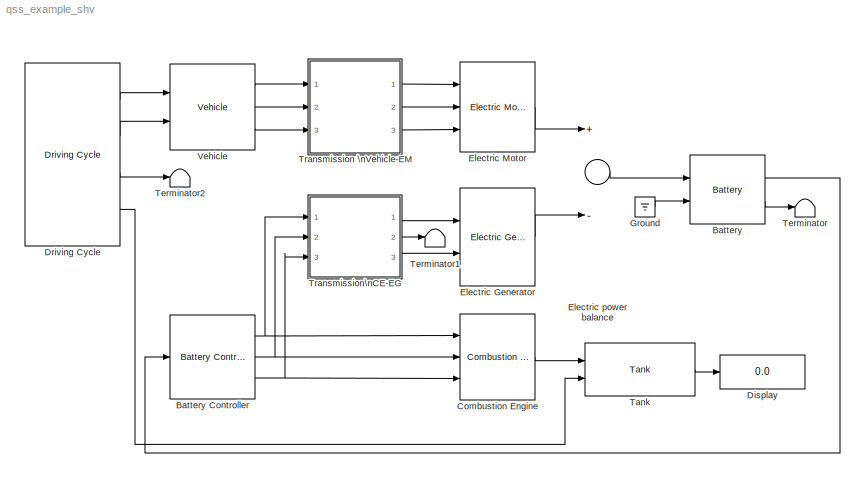
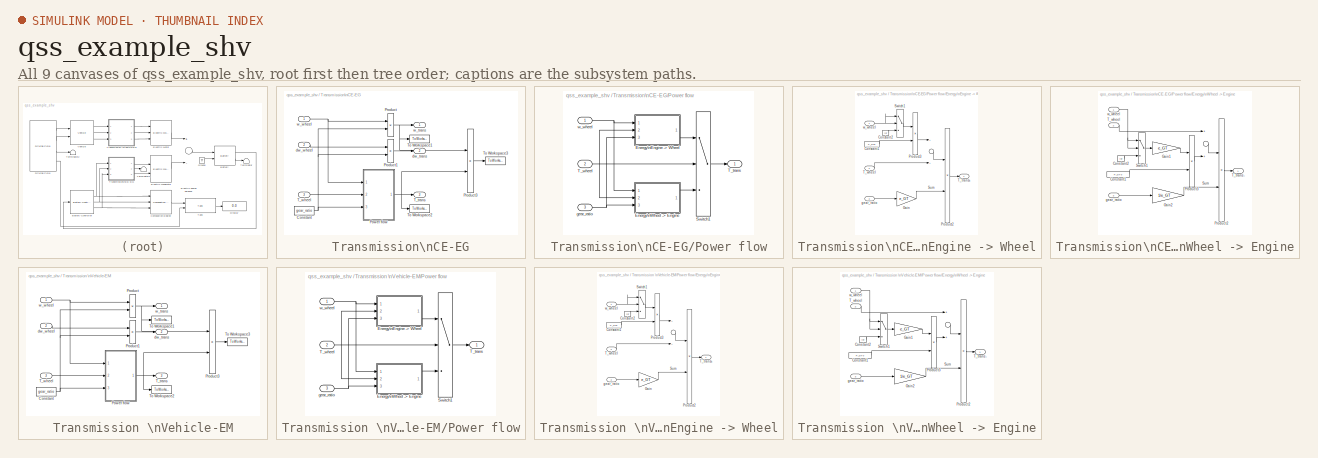
[diagram: thumbnail index - all 9 canvases of the model, root first then tree order]
MODEL qss_example_shv
KIND model
BLOCK [Reference] Battery  REF=qss_tb_library/Energy Buffer/Battery  (lib defined in mdl_a75e96b0ff2a, mdl_aad2a3137e65)
  I_0 = 100
  Ports = [2, 2]
  Q_BT_IC_rel = 27.78
  ShowPortLabels = on
  SourceBlock = qss_tb_library/Energy Buffer/Battery
  SourceType = Battery
  Tag = battery
  t_ch = 20
BLOCK [Reference] Battery Controller  REF=qss_tb_library/Controller/Battery Controller  (lib defined in mdl_a75e96b0ff2a, mdl_aad2a3137e65)
  Ports = [1, 3]
  ShowPortLabels = on
  SourceBlock = qss_tb_library/Controller/Battery Controller
  SourceType = Battery Controller
BLOCK [Reference] Combustion Engine  REF=qss_tb_library/Energy Converter/Combustion Engine\n(consumption map)  (lib defined in mdl_a75e96b0ff2a, mdl_aad2a3137e65)
  ENABLE_FUEL_CUTOFF = off
  P_CE_cutoff = 0
  P_CE_idle = 0
  P_aux = 0
  Ports = [3, 1]
  ShowPortLabels = on
  SourceBlock = qss_tb_library/Energy Converter/Combustion Engine\n(consumption map)
  SourceType = Combustion Engine (based on consumption map)
  T_CE_cutoff = 0
  Tag = combustion engine
  V_d = 0.708
  engine_type = Otto
  scale_CE = 0.5
  theta_CE = 0.05
  w_CE_idle = 105
BLOCK [Display] Display
  Decimation = 1
  Lockdown = off
  Ports = [1]
BLOCK [Reference] Driving Cycle  REF=qss_tb_library/Driving Cycle/Driving Cycle  (lib defined in mdl_a75e96b0ff2a, mdl_aad2a3137e65)
  Ports = [0, 4]
  ShowPortLabels = on
  SourceBlock = qss_tb_library/Driving Cycle/Driving Cycle
  SourceType = Driving Cycle
  Tag = cycle
  autostop = on
  cyclenr = Europe: NEDC
  stepsize = 1
BLOCK [Reference] Electric Generator  REF=qss_tb_library/Energy Converter/Electric Generator  (lib defined in mdl_a75e96b0ff2a, mdl_aad2a3137e65)
  Ports = [2, 1]
  ShowPortLabels = on
  SourceBlock = qss_tb_library/Energy Converter/Electric Generator
  SourceType = Electric Generator
  scale_EG = 2
BLOCK [Reference] Electric Motor  REF=qss_tb_library/Energy Converter/Electric Motor  (lib defined in mdl_a75e96b0ff2a, mdl_aad2a3137e65)
  P_aux = 0
  Ports = [3, 1]
  ShowPortLabels = on
  SourceBlock = qss_tb_library/Energy Converter/Electric Motor
  SourceType = Electric Motor
  scale_EM = 3.5
  theta_EM = 0.1
BLOCK [Sum] Electric power balance
  InputSameDT = off
  Inputs = +-
  OutDataTypeMode = Inherit via internal rule
  OutScaling = 2^-10
  Ports = [2, 1]
  SaturateOnIntegerOverflow = off
BLOCK [Ground] Ground
BLOCK [Reference] Tank  REF=qss_tb_library/Energy Source/Tank  (lib defined in mdl_a75e96b0ff2a, mdl_aad2a3137e65)
  Ports = [2, 1]
  ShowPortLabels = on
  SourceBlock = qss_tb_library/Energy Source/Tank
  SourceType = Tank
  Tag = tank
  flag_cold_start = off
  fuel = Gasoline
BLOCK [Terminator] Terminator
BLOCK [Terminator] Terminator1
BLOCK [Terminator] Terminator2
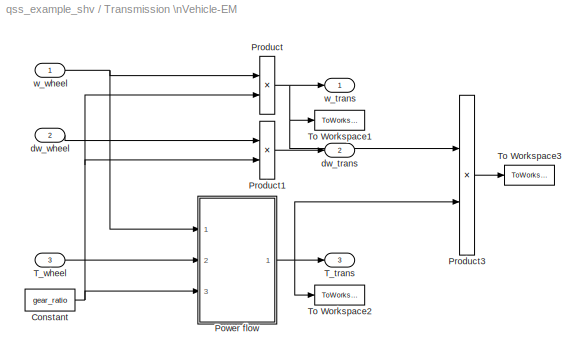
BLOCK [SubSystem] Transmission \nVehicle-EM
  AncestorBlock = qss_tb_library/Gear System/Transmission
  MaskCallbackString = |||
  MaskDescription = This block simulates a transmission with a fixed gear ratio. \n\nInput:\n=====\n	w_wheel	Speed of the wheel [rad/s]\n	dw_wheel	Acceleration of the wheel [rad/s^2]\n	T_wheel	Torque on the wheel [Nm]\n\nOutput:\n======\n	w_trans		Speed of the fly wheel [rad/s]\n	dw_trans	Acceleration of the fly wheel [rad/s^2]\n	T_trans		Torque on the fly wheel [Nm]
  MaskEnableString = on,on,on,on
  MaskHideContents = off
  MaskIconFrame = on
  MaskIconOpaque = on
  MaskIconRotate = none
  MaskIconUnits = autoscale
  MaskInitialization = init_transmission;
  MaskPromptString = Gear ratio [-]|Efficiency [-]|Idling losses (friction) [W]|Minimum wheel speed beyond which losses are generated [rad/s]
  MaskStyleString = edit,edit,edit,edit
  MaskTabNameString = ,,,
  MaskToolTipString = on,on,on,on
  MaskTunableValueString = on,on,on,on
  MaskType = Transmission
  MaskValueString = 3.5|0.98|300|1
  MaskVarAliasString = ,,,
  MaskVariables = gear_ratio=@1;e_GT=@2;P_GT0=@3;w_wheel_min=@4;
  MaskVisibilityString = on,on,on,on
  MinAlgLoopOccurrences = off
  Ports = [3, 3]
  RTWSystemCode = Auto
  Tag = simple transmission
  TreatAsAtomicUnit = off
BLOCK [Constant] Transmission \nVehicle-EM/Constant
  Value = gear_ratio
BLOCK [SubSystem] Transmission \nVehicle-EM/Power flow
  MaskHideContents = off
  MinAlgLoopOccurrences = off
  Ports = [3, 1]
  RTWSystemCode = Auto
  TreatAsAtomicUnit = off
BLOCK [SubSystem] Transmission \nVehicle-EM/Power flow/Energy\nEngine -> Wheel
  MaskHideContents = off
  MinAlgLoopOccurrences = off
  Ports = [3, 1]
  RTWSystemCode = Auto
  TreatAsAtomicUnit = off
BLOCK [Constant] Transmission \nVehicle-EM/Power flow/Energy\nEngine -> Wheel/Constant1
  Value = P_GT0
BLOCK [Constant] Transmission \nVehicle-EM/Power flow/Energy\nEngine -> Wheel/Constant2
  Value = inf
BLOCK [Gain] Transmission \nVehicle-EM/Power flow/Energy\nEngine -> Wheel/Gain
  Gain = e_GT
BLOCK [Product] Transmission \nVehicle-EM/Power flow/Energy\nEngine -> Wheel/Product2
  Inputs = */
  Ports = [2, 1]
BLOCK [Product] Transmission \nVehicle-EM/Power flow/Energy\nEngine -> Wheel/Product3
  Inputs = /*
  Ports = [2, 1]
BLOCK [Sum] Transmission \nVehicle-EM/Power flow/Energy\nEngine -> Wheel/Sum
  Ports = [2, 1]
BLOCK [Switch] Transmission \nVehicle-EM/Power flow/Energy\nEngine -> Wheel/Switch1
  Threshold = w_wheel_min
BLOCK [Outport] Transmission \nVehicle-EM/Power flow/Energy\nEngine -> Wheel/T_trans+
  BusOutputAsStruct = off
  IconDisplay = Port number
  InitialOutput = 0
BLOCK [Inport] Transmission \nVehicle-EM/Power flow/Energy\nEngine -> Wheel/T_wheel
  IconDisplay = Port number
  Port = 2
BLOCK [Inport] Transmission \nVehicle-EM/Power flow/Energy\nEngine -> Wheel/gear_ratio
  IconDisplay = Port number
  Port = 3
BLOCK [Inport] Transmission \nVehicle-EM/Power flow/Energy\nEngine -> Wheel/w_wheel
  IconDisplay = Port number
BLOCK [SubSystem] Transmission \nVehicle-EM/Power flow/Energy\nWheel -> Engine
  MaskHideContents = off
  MinAlgLoopOccurrences = off
  Ports = [3, 1]
  RTWSystemCode = Auto
  TreatAsAtomicUnit = off
BLOCK [Constant] Transmission \nVehicle-EM/Power flow/Energy\nWheel -> Engine/Constant1
  Value = P_GT0
BLOCK [Constant] Transmission \nVehicle-EM/Power flow/Energy\nWheel -> Engine/Constant2
  Value = inf
BLOCK [Gain] Transmission \nVehicle-EM/Power flow/Energy\nWheel -> Engine/Gain1
  Gain = e_GT
BLOCK [Gain] Transmission \nVehicle-EM/Power flow/Energy\nWheel -> Engine/Gain2
  Gain = 1/e_GT
BLOCK [Product] Transmission \nVehicle-EM/Power flow/Energy\nWheel -> Engine/Product2
  Inputs = */
  Ports = [2, 1]
BLOCK [Product] Transmission \nVehicle-EM/Power flow/Energy\nWheel -> Engine/Product3
  Inputs = /*
  Ports = [2, 1]
BLOCK [Sum] Transmission \nVehicle-EM/Power flow/Energy\nWheel -> Engine/Sum
  Ports = [2, 1]
BLOCK [Switch] Transmission \nVehicle-EM/Power flow/Energy\nWheel -> Engine/Switch1
  Threshold = w_wheel_min
BLOCK [Outport] Transmission \nVehicle-EM/Power flow/Energy\nWheel -> Engine/T_trans-
  BusOutputAsStruct = off
  IconDisplay = Port number
  InitialOutput = 0
BLOCK [Inport] Transmission \nVehicle-EM/Power flow/Energy\nWheel -> Engine/T_wheel
  IconDisplay = Port number
  Port = 2
BLOCK [Inport] Transmission \nVehicle-EM/Power flow/Energy\nWheel -> Engine/gear_ratio
  IconDisplay = Port number
  Port = 3
BLOCK [Inport] Transmission \nVehicle-EM/Power flow/Energy\nWheel -> Engine/w_wheel
  IconDisplay = Port number
BLOCK [Switch] Transmission \nVehicle-EM/Power flow/Switch1
BLOCK [Outport] Transmission \nVehicle-EM/Power flow/T_trans
  BusOutputAsStruct = off
  IconDisplay = Port number
  InitialOutput = 0
BLOCK [Inport] Transmission \nVehicle-EM/Power flow/T_wheel
  IconDisplay = Port number
  Port = 2
BLOCK [Inport] Transmission \nVehicle-EM/Power flow/gear_ratio
  IconDisplay = Port number
  Port = 3
BLOCK [Inport] Transmission \nVehicle-EM/Power flow/w_wheel
  IconDisplay = Port number
BLOCK [Product] Transmission \nVehicle-EM/Product
  Ports = [2, 1]
BLOCK [Product] Transmission \nVehicle-EM/Product1
  Ports = [2, 1]
BLOCK [Product] Transmission \nVehicle-EM/Product3
  Ports = [2, 1]
BLOCK [Outport] Transmission \nVehicle-EM/T_trans
  BusOutputAsStruct = off
  IconDisplay = Port number
  InitialOutput = 0
  Port = 3
BLOCK [Inport] Transmission \nVehicle-EM/T_wheel
  IconDisplay = Port number
  Port = 3
BLOCK [ToWorkspace] Transmission \nVehicle-EM/To Workspace1
  MaxDataPoints = inf
  SampleTime = -1
  SaveFormat = Array
  VariableName = w_trans_1
BLOCK [ToWorkspace] Transmission \nVehicle-EM/To Workspace2
  MaxDataPoints = inf
  SampleTime = -1
  SaveFormat = Array
  VariableName = T_trans_1
BLOCK [ToWorkspace] Transmission \nVehicle-EM/To Workspace3
  MaxDataPoints = inf
  SampleTime = -1
  SaveFormat = Array
  VariableName = P_trans_1
BLOCK [Outport] Transmission \nVehicle-EM/dw_trans
  BusOutputAsStruct = off
  IconDisplay = Port number
  InitialOutput = 0
  Port = 2
BLOCK [Inport] Transmission \nVehicle-EM/dw_wheel
  IconDisplay = Port number
  Port = 2
BLOCK [Outport] Transmission \nVehicle-EM/w_trans
  BusOutputAsStruct = off
  IconDisplay = Port number
  InitialOutput = 0
BLOCK [Inport] Transmission \nVehicle-EM/w_wheel
  IconDisplay = Port number
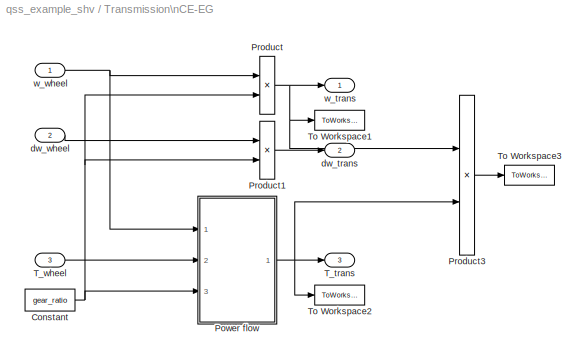
BLOCK [SubSystem] Transmission\nCE-EG
  AncestorBlock = qss_tb_library/Gear System/Transmission
  MaskCallbackString = |||
  MaskDescription = This block simulates a transmission with a fixed gear ratio. \n\nInput:\n=====\n	w_wheel	Speed of the wheel [rad/s]\n	dw_wheel	Acceleration of the wheel [rad/s^2]\n	T_wheel	Torque on the wheel [Nm]\n\nOutput:\n======\n	w_trans		Speed of the fly wheel [rad/s]\n	dw_trans	Acceleration of the fly wheel [rad/s^2]\n	T_trans		Torque on the fly wheel [Nm]
  MaskEnableString = on,on,on,on
  MaskHideContents = off
  MaskIconFrame = on
  MaskIconOpaque = on
  MaskIconRotate = none
  MaskIconUnits = autoscale
  MaskInitialization = init_transmission;
  MaskPromptString = Gear ratio [-]|Efficiency [-]|Idling losses (friction) [W]|Minimum wheel speed beyond which losses are generated [rad/s]
  MaskStyleString = edit,edit,edit,edit
  MaskTabNameString = ,,,
  MaskToolTipString = on,on,on,on
  MaskTunableValueString = on,on,on,on
  MaskType = Transmission
  MaskValueString = 0.75|0.98|200|1
  MaskVarAliasString = ,,,
  MaskVariables = gear_ratio=@1;e_GT=@2;P_GT0=@3;w_wheel_min=@4;
  MaskVisibilityString = on,on,on,on
  MinAlgLoopOccurrences = off
  Ports = [3, 3]
  RTWSystemCode = Auto
  Tag = simple transmission
  TreatAsAtomicUnit = off
BLOCK [Constant] Transmission\nCE-EG/Constant
  Value = gear_ratio
BLOCK [SubSystem] Transmission\nCE-EG/Power flow
  MaskHideContents = off
  MinAlgLoopOccurrences = off
  Ports = [3, 1]
  RTWSystemCode = Auto
  TreatAsAtomicUnit = off
BLOCK [SubSystem] Transmission\nCE-EG/Power flow/Energy\nEngine -> Wheel
  MaskHideContents = off
  MinAlgLoopOccurrences = off
  Ports = [3, 1]
  RTWSystemCode = Auto
  TreatAsAtomicUnit = off
BLOCK [Constant] Transmission\nCE-EG/Power flow/Energy\nEngine -> Wheel/Constant1
  Value = P_GT0
BLOCK [Constant] Transmission\nCE-EG/Power flow/Energy\nEngine -> Wheel/Constant2
  Value = inf
BLOCK [Gain] Transmission\nCE-EG/Power flow/Energy\nEngine -> Wheel/Gain
  Gain = e_GT
BLOCK [Product] Transmission\nCE-EG/Power flow/Energy\nEngine -> Wheel/Product2
  Inputs = */
  Ports = [2, 1]
BLOCK [Product] Transmission\nCE-EG/Power flow/Energy\nEngine -> Wheel/Product3
  Inputs = /*
  Ports = [2, 1]
BLOCK [Sum] Transmission\nCE-EG/Power flow/Energy\nEngine -> Wheel/Sum
  Ports = [2, 1]
BLOCK [Switch] Transmission\nCE-EG/Power flow/Energy\nEngine -> Wheel/Switch1
  Threshold = w_wheel_min
BLOCK [Outport] Transmission\nCE-EG/Power flow/Energy\nEngine -> Wheel/T_trans+
  BusOutputAsStruct = off
  IconDisplay = Port number
  InitialOutput = 0
BLOCK [Inport] Transmission\nCE-EG/Power flow/Energy\nEngine -> Wheel/T_wheel
  IconDisplay = Port number
  Port = 2
BLOCK [Inport] Transmission\nCE-EG/Power flow/Energy\nEngine -> Wheel/gear_ratio
  IconDisplay = Port number
  Port = 3
BLOCK [Inport] Transmission\nCE-EG/Power flow/Energy\nEngine -> Wheel/w_wheel
  IconDisplay = Port number
BLOCK [SubSystem] Transmission\nCE-EG/Power flow/Energy\nWheel -> Engine
  MaskHideContents = off
  MinAlgLoopOccurrences = off
  Ports = [3, 1]
  RTWSystemCode = Auto
  TreatAsAtomicUnit = off
BLOCK [Constant] Transmission\nCE-EG/Power flow/Energy\nWheel -> Engine/Constant1
  Value = P_GT0
BLOCK [Constant] Transmission\nCE-EG/Power flow/Energy\nWheel -> Engine/Constant2
  Value = inf
BLOCK [Gain] Transmission\nCE-EG/Power flow/Energy\nWheel -> Engine/Gain1
  Gain = e_GT
BLOCK [Gain] Transmission\nCE-EG/Power flow/Energy\nWheel -> Engine/Gain2
  Gain = 1/e_GT
BLOCK [Product] Transmission\nCE-EG/Power flow/Energy\nWheel -> Engine/Product2
  Inputs = */
  Ports = [2, 1]
BLOCK [Product] Transmission\nCE-EG/Power flow/Energy\nWheel -> Engine/Product3
  Inputs = /*
  Ports = [2, 1]
BLOCK [Sum] Transmission\nCE-EG/Power flow/Energy\nWheel -> Engine/Sum
  Ports = [2, 1]
BLOCK [Switch] Transmission\nCE-EG/Power flow/Energy\nWheel -> Engine/Switch1
  Threshold = w_wheel_min
BLOCK [Outport] Transmission\nCE-EG/Power flow/Energy\nWheel -> Engine/T_trans-
  BusOutputAsStruct = off
  IconDisplay = Port number
  InitialOutput = 0
BLOCK [Inport] Transmission\nCE-EG/Power flow/Energy\nWheel -> Engine/T_wheel
  IconDisplay = Port number
  Port = 2
BLOCK [Inport] Transmission\nCE-EG/Power flow/Energy\nWheel -> Engine/gear_ratio
  IconDisplay = Port number
  Port = 3
BLOCK [Inport] Transmission\nCE-EG/Power flow/Energy\nWheel -> Engine/w_wheel
  IconDisplay = Port number
BLOCK [Switch] Transmission\nCE-EG/Power flow/Switch1
BLOCK [Outport] Transmission\nCE-EG/Power flow/T_trans
  BusOutputAsStruct = off
  IconDisplay = Port number
  InitialOutput = 0
BLOCK [Inport] Transmission\nCE-EG/Power flow/T_wheel
  IconDisplay = Port number
  Port = 2
BLOCK [Inport] Transmission\nCE-EG/Power flow/gear_ratio
  IconDisplay = Port number
  Port = 3
BLOCK [Inport] Transmission\nCE-EG/Power flow/w_wheel
  IconDisplay = Port number
BLOCK [Product] Transmission\nCE-EG/Product
  Ports = [2, 1]
BLOCK [Product] Transmission\nCE-EG/Product1
  Ports = [2, 1]
BLOCK [Product] Transmission\nCE-EG/Product3
  Ports = [2, 1]
BLOCK [Outport] Transmission\nCE-EG/T_trans
  BusOutputAsStruct = off
  IconDisplay = Port number
  InitialOutput = 0
  Port = 3
BLOCK [Inport] Transmission\nCE-EG/T_wheel
  IconDisplay = Port number
  Port = 3
BLOCK [ToWorkspace] Transmission\nCE-EG/To Workspace1
  MaxDataPoints = inf
  SampleTime = -1
  SaveFormat = Array
  VariableName = w_trans_2
BLOCK [ToWorkspace] Transmission\nCE-EG/To Workspace2
  MaxDataPoints = inf
  SampleTime = -1
  SaveFormat = Array
  VariableName = T_trans_2
BLOCK [ToWorkspace] Transmission\nCE-EG/To Workspace3
  MaxDataPoints = inf
  SampleTime = -1
  SaveFormat = Array
  VariableName = P_trans_2
BLOCK [Outport] Transmission\nCE-EG/dw_trans
  BusOutputAsStruct = off
  IconDisplay = Port number
  InitialOutput = 0
  Port = 2
BLOCK [Inport] Transmission\nCE-EG/dw_wheel
  IconDisplay = Port number
  Port = 2
BLOCK [Outport] Transmission\nCE-EG/w_trans
  BusOutputAsStruct = off
  IconDisplay = Port number
  InitialOutput = 0
BLOCK [Inport] Transmission\nCE-EG/w_wheel
  IconDisplay = Port number
BLOCK [Reference] Vehicle  REF=qss_tb_library/Vehicle/Vehicle  (lib defined in mdl_a75e96b0ff2a, mdl_aad2a3137e65)
  A_f = 2
  Ports = [2, 3]
  ShowPortLabels = on
  SourceBlock = qss_tb_library/Vehicle/Vehicle
  SourceType = Vehicle
  Tag = vehicle
  cw = 0.22
  d_wheel = 0.5
  m_f = 750+200
  mt2m_f = 5
  mu = 0.008
NET Battery Controller:1 -> Combustion Engine:1, Transmission\nCE-EG:1
NET Battery Controller:2 -> Combustion Engine:2, Transmission\nCE-EG:2
NET Battery Controller:3 -> Combustion Engine:3, Transmission\nCE-EG:3
LINE Battery:1 -> Battery Controller:1
LINE Battery:2 -> Terminator:1
LINE Combustion Engine:1 -> Tank:1
LINE Driving Cycle:1 -> Vehicle:1
LINE Driving Cycle:2 -> Vehicle:2
LINE Driving Cycle:3 -> Terminator2:1
LINE Driving Cycle:4 -> Tank:2
LINE Electric Generator:1 -> Electric power balance:2
LINE Electric Motor:1 -> Electric power balance:1
LINE Electric power balance:1 -> Battery:1
LINE Ground:1 -> Battery:2
LINE Tank:1 -> Display:1
NET Transmission \nVehicle-EM/Constant:1 -> Transmission \nVehicle-EM/Power flow:3, Transmission \nVehicle-EM/Product1:2, Transmission \nVehicle-EM/Product:2
LINE Transmission \nVehicle-EM/Power flow/Energy\nEngine -> Wheel/Constant1:1 -> Transmission \nVehicle-EM/Power flow/Energy\nEngine -> Wheel/Product3:2
LINE Transmission \nVehicle-EM/Power flow/Energy\nEngine -> Wheel/Constant2:1 -> Transmission \nVehicle-EM/Power flow/Energy\nEngine -> Wheel/Switch1:3
LINE Transmission \nVehicle-EM/Power flow/Energy\nEngine -> Wheel/Gain:1 -> Transmission \nVehicle-EM/Power flow/Energy\nEngine -> Wheel/Product2:2
LINE Transmission \nVehicle-EM/Power flow/Energy\nEngine -> Wheel/Product2:1 -> Transmission \nVehicle-EM/Power flow/Energy\nEngine -> Wheel/T_trans+:1
LINE Transmission \nVehicle-EM/Power flow/Energy\nEngine -> Wheel/Product3:1 -> Transmission \nVehicle-EM/Power flow/Energy\nEngine -> Wheel/Sum:1
LINE Transmission \nVehicle-EM/Power flow/Energy\nEngine -> Wheel/Sum:1 -> Transmission \nVehicle-EM/Power flow/Energy\nEngine -> Wheel/Product2:1
LINE Transmission \nVehicle-EM/Power flow/Energy\nEngine -> Wheel/Switch1:1 -> Transmission \nVehicle-EM/Power flow/Energy\nEngine -> Wheel/Product3:1
LINE Transmission \nVehicle-EM/Power flow/Energy\nEngine -> Wheel/T_wheel:1 -> Transmission \nVehicle-EM/Power flow/Energy\nEngine -> Wheel/Sum:2
LINE Transmission \nVehicle-EM/Power flow/Energy\nEngine -> Wheel/gear_ratio:1 -> Transmission \nVehicle-EM/Power flow/Energy\nEngine -> Wheel/Gain:1
NET Transmission \nVehicle-EM/Power flow/Energy\nEngine -> Wheel/w_wheel:1 -> Transmission \nVehicle-EM/Power flow/Energy\nEngine -> Wheel/Switch1:1, Transmission \nVehicle-EM/Power flow/Energy\nEngine -> Wheel/Switch1:2
LINE Transmission \nVehicle-EM/Power flow/Energy\nEngine -> Wheel:1 -> Transmission \nVehicle-EM/Power flow/Switch1:1
LINE Transmission \nVehicle-EM/Power flow/Energy\nWheel -> Engine/Constant1:1 -> Transmission \nVehicle-EM/Power flow/Energy\nWheel -> Engine/Product3:2
LINE Transmission \nVehicle-EM/Power flow/Energy\nWheel -> Engine/Constant2:1 -> Transmission \nVehicle-EM/Power flow/Energy\nWheel -> Engine/Switch1:3
LINE Transmission \nVehicle-EM/Power flow/Energy\nWheel -> Engine/Gain1:1 -> Transmission \nVehicle-EM/Power flow/Energy\nWheel -> Engine/Product3:1
LINE Transmission \nVehicle-EM/Power flow/Energy\nWheel -> Engine/Gain2:1 -> Transmission \nVehicle-EM/Power flow/Energy\nWheel -> Engine/Product2:2
LINE Transmission \nVehicle-EM/Power flow/Energy\nWheel -> Engine/Product2:1 -> Transmission \nVehicle-EM/Power flow/Energy\nWheel -> Engine/T_trans-:1
LINE Transmission \nVehicle-EM/Power flow/Energy\nWheel -> Engine/Product3:1 -> Transmission \nVehicle-EM/Power flow/Energy\nWheel -> Engine/Sum:2
LINE Transmission \nVehicle-EM/Power flow/Energy\nWheel -> Engine/Sum:1 -> Transmission \nVehicle-EM/Power flow/Energy\nWheel -> Engine/Product2:1
LINE Transmission \nVehicle-EM/Power flow/Energy\nWheel -> Engine/Switch1:1 -> Transmission \nVehicle-EM/Power flow/Energy\nWheel -> Engine/Gain1:1
LINE Transmission \nVehicle-EM/Power flow/Energy\nWheel -> Engine/T_wheel:1 -> Transmission \nVehicle-EM/Power flow/Energy\nWheel -> Engine/Sum:1
LINE Transmission \nVehicle-EM/Power flow/Energy\nWheel -> Engine/gear_ratio:1 -> Transmission \nVehicle-EM/Power flow/Energy\nWheel -> Engine/Gain2:1
NET Transmission \nVehicle-EM/Power flow/Energy\nWheel -> Engine/w_wheel:1 -> Transmission \nVehicle-EM/Power flow/Energy\nWheel -> Engine/Switch1:1, Transmission \nVehicle-EM/Power flow/Energy\nWheel -> Engine/Switch1:2
LINE Transmission \nVehicle-EM/Power flow/Energy\nWheel -> Engine:1 -> Transmission \nVehicle-EM/Power flow/Switch1:3
LINE Transmission \nVehicle-EM/Power flow/Switch1:1 -> Transmission \nVehicle-EM/Power flow/T_trans:1
NET Transmission \nVehicle-EM/Power flow/T_wheel:1 -> Transmission \nVehicle-EM/Power flow/Energy\nEngine -> Wheel:2, Transmission \nVehicle-EM/Power flow/Energy\nWheel -> Engine:2, Transmission \nVehicle-EM/Power flow/Switch1:2
NET Transmission \nVehicle-EM/Power flow/gear_ratio:1 -> Transmission \nVehicle-EM/Power flow/Energy\nEngine -> Wheel:3, Transmission \nVehicle-EM/Power flow/Energy\nWheel -> Engine:3
NET Transmission \nVehicle-EM/Power flow/w_wheel:1 -> Transmission \nVehicle-EM/Power flow/Energy\nEngine -> Wheel:1, Transmission \nVehicle-EM/Power flow/Energy\nWheel -> Engine:1
NET Transmission \nVehicle-EM/Power flow:1 -> Transmission \nVehicle-EM/Product3:2, Transmission \nVehicle-EM/T_trans:1, Transmission \nVehicle-EM/To Workspace2:1
LINE Transmission \nVehicle-EM/Product1:1 -> Transmission \nVehicle-EM/dw_trans:1
LINE Transmission \nVehicle-EM/Product3:1 -> Transmission \nVehicle-EM/To Workspace3:1
NET Transmission \nVehicle-EM/Product:1 -> Transmission \nVehicle-EM/Product3:1, Transmission \nVehicle-EM/To Workspace1:1, Transmission \nVehicle-EM/w_trans:1
LINE Transmission \nVehicle-EM/T_wheel:1 -> Transmission \nVehicle-EM/Power flow:2
LINE Transmission \nVehicle-EM/dw_wheel:1 -> Transmission \nVehicle-EM/Product1:1
NET Transmission \nVehicle-EM/w_wheel:1 -> Transmission \nVehicle-EM/Power flow:1, Transmission \nVehicle-EM/Product:1
LINE Transmission \nVehicle-EM:1 -> Electric Motor:1
LINE Transmission \nVehicle-EM:2 -> Electric Motor:2
LINE Transmission \nVehicle-EM:3 -> Electric Motor:3
NET Transmission\nCE-EG/Constant:1 -> Transmission\nCE-EG/Power flow:3, Transmission\nCE-EG/Product1:2, Transmission\nCE-EG/Product:2
LINE Transmission\nCE-EG/Power flow/Energy\nEngine -> Wheel/Constant1:1 -> Transmission\nCE-EG/Power flow/Energy\nEngine -> Wheel/Product3:2
LINE Transmission\nCE-EG/Power flow/Energy\nEngine -> Wheel/Constant2:1 -> Transmission\nCE-EG/Power flow/Energy\nEngine -> Wheel/Switch1:3
LINE Transmission\nCE-EG/Power flow/Energy\nEngine -> Wheel/Gain:1 -> Transmission\nCE-EG/Power flow/Energy\nEngine -> Wheel/Product2:2
LINE Transmission\nCE-EG/Power flow/Energy\nEngine -> Wheel/Product2:1 -> Transmission\nCE-EG/Power flow/Energy\nEngine -> Wheel/T_trans+:1
LINE Transmission\nCE-EG/Power flow/Energy\nEngine -> Wheel/Product3:1 -> Transmission\nCE-EG/Power flow/Energy\nEngine -> Wheel/Sum:1
LINE Transmission\nCE-EG/Power flow/Energy\nEngine -> Wheel/Sum:1 -> Transmission\nCE-EG/Power flow/Energy\nEngine -> Wheel/Product2:1
LINE Transmission\nCE-EG/Power flow/Energy\nEngine -> Wheel/Switch1:1 -> Transmission\nCE-EG/Power flow/Energy\nEngine -> Wheel/Product3:1
LINE Transmission\nCE-EG/Power flow/Energy\nEngine -> Wheel/T_wheel:1 -> Transmission\nCE-EG/Power flow/Energy\nEngine -> Wheel/Sum:2
LINE Transmission\nCE-EG/Power flow/Energy\nEngine -> Wheel/gear_ratio:1 -> Transmission\nCE-EG/Power flow/Energy\nEngine -> Wheel/Gain:1
NET Transmission\nCE-EG/Power flow/Energy\nEngine -> Wheel/w_wheel:1 -> Transmission\nCE-EG/Power flow/Energy\nEngine -> Wheel/Switch1:1, Transmission\nCE-EG/Power flow/Energy\nEngine -> Wheel/Switch1:2
LINE Transmission\nCE-EG/Power flow/Energy\nEngine -> Wheel:1 -> Transmission\nCE-EG/Power flow/Switch1:1
LINE Transmission\nCE-EG/Power flow/Energy\nWheel -> Engine/Constant1:1 -> Transmission\nCE-EG/Power flow/Energy\nWheel -> Engine/Product3:2
LINE Transmission\nCE-EG/Power flow/Energy\nWheel -> Engine/Constant2:1 -> Transmission\nCE-EG/Power flow/Energy\nWheel -> Engine/Switch1:3
LINE Transmission\nCE-EG/Power flow/Energy\nWheel -> Engine/Gain1:1 -> Transmission\nCE-EG/Power flow/Energy\nWheel -> Engine/Product3:1
LINE Transmission\nCE-EG/Power flow/Energy\nWheel -> Engine/Gain2:1 -> Transmission\nCE-EG/Power flow/Energy\nWheel -> Engine/Product2:2
LINE Transmission\nCE-EG/Power flow/Energy\nWheel -> Engine/Product2:1 -> Transmission\nCE-EG/Power flow/Energy\nWheel -> Engine/T_trans-:1
LINE Transmission\nCE-EG/Power flow/Energy\nWheel -> Engine/Product3:1 -> Transmission\nCE-EG/Power flow/Energy\nWheel -> Engine/Sum:2
LINE Transmission\nCE-EG/Power flow/Energy\nWheel -> Engine/Sum:1 -> Transmission\nCE-EG/Power flow/Energy\nWheel -> Engine/Product2:1
LINE Transmission\nCE-EG/Power flow/Energy\nWheel -> Engine/Switch1:1 -> Transmission\nCE-EG/Power flow/Energy\nWheel -> Engine/Gain1:1
LINE Transmission\nCE-EG/Power flow/Energy\nWheel -> Engine/T_wheel:1 -> Transmission\nCE-EG/Power flow/Energy\nWheel -> Engine/Sum:1
LINE Transmission\nCE-EG/Power flow/Energy\nWheel -> Engine/gear_ratio:1 -> Transmission\nCE-EG/Power flow/Energy\nWheel -> Engine/Gain2:1
NET Transmission\nCE-EG/Power flow/Energy\nWheel -> Engine/w_wheel:1 -> Transmission\nCE-EG/Power flow/Energy\nWheel -> Engine/Switch1:1, Transmission\nCE-EG/Power flow/Energy\nWheel -> Engine/Switch1:2
LINE Transmission\nCE-EG/Power flow/Energy\nWheel -> Engine:1 -> Transmission\nCE-EG/Power flow/Switch1:3
LINE Transmission\nCE-EG/Power flow/Switch1:1 -> Transmission\nCE-EG/Power flow/T_trans:1
NET Transmission\nCE-EG/Power flow/T_wheel:1 -> Transmission\nCE-EG/Power flow/Energy\nEngine -> Wheel:2, Transmission\nCE-EG/Power flow/Energy\nWheel -> Engine:2, Transmission\nCE-EG/Power flow/Switch1:2
NET Transmission\nCE-EG/Power flow/gear_ratio:1 -> Transmission\nCE-EG/Power flow/Energy\nEngine -> Wheel:3, Transmission\nCE-EG/Power flow/Energy\nWheel -> Engine:3
NET Transmission\nCE-EG/Power flow/w_wheel:1 -> Transmission\nCE-EG/Power flow/Energy\nEngine -> Wheel:1, Transmission\nCE-EG/Power flow/Energy\nWheel -> Engine:1
NET Transmission\nCE-EG/Power flow:1 -> Transmission\nCE-EG/Product3:2, Transmission\nCE-EG/T_trans:1, Transmission\nCE-EG/To Workspace2:1
LINE Transmission\nCE-EG/Product1:1 -> Transmission\nCE-EG/dw_trans:1
LINE Transmission\nCE-EG/Product3:1 -> Transmission\nCE-EG/To Workspace3:1
NET Transmission\nCE-EG/Product:1 -> Transmission\nCE-EG/Product3:1, Transmission\nCE-EG/To Workspace1:1, Transmission\nCE-EG/w_trans:1
LINE Transmission\nCE-EG/T_wheel:1 -> Transmission\nCE-EG/Power flow:2
LINE Transmission\nCE-EG/dw_wheel:1 -> Transmission\nCE-EG/Product1:1
NET Transmission\nCE-EG/w_wheel:1 -> Transmission\nCE-EG/Power flow:1, Transmission\nCE-EG/Product:1
LINE Transmission\nCE-EG:1 -> Electric Generator:1
LINE Transmission\nCE-EG:2 -> Terminator1:1
LINE Transmission\nCE-EG:3 -> Electric Generator:2
LINE Vehicle:1 -> Transmission \nVehicle-EM:1
LINE Vehicle:2 -> Transmission \nVehicle-EM:2
LINE Vehicle:3 -> Transmission \nVehicle-EM:3
note: NET lines group one-source signal fan-out (src -> all destinations, sorted); 1:1 wires keep LINE
